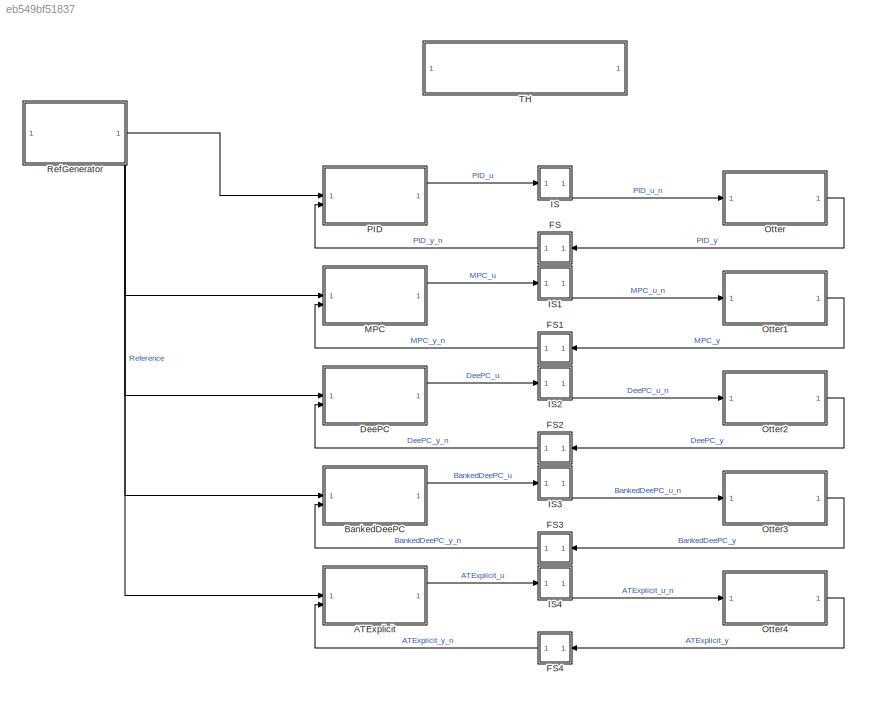
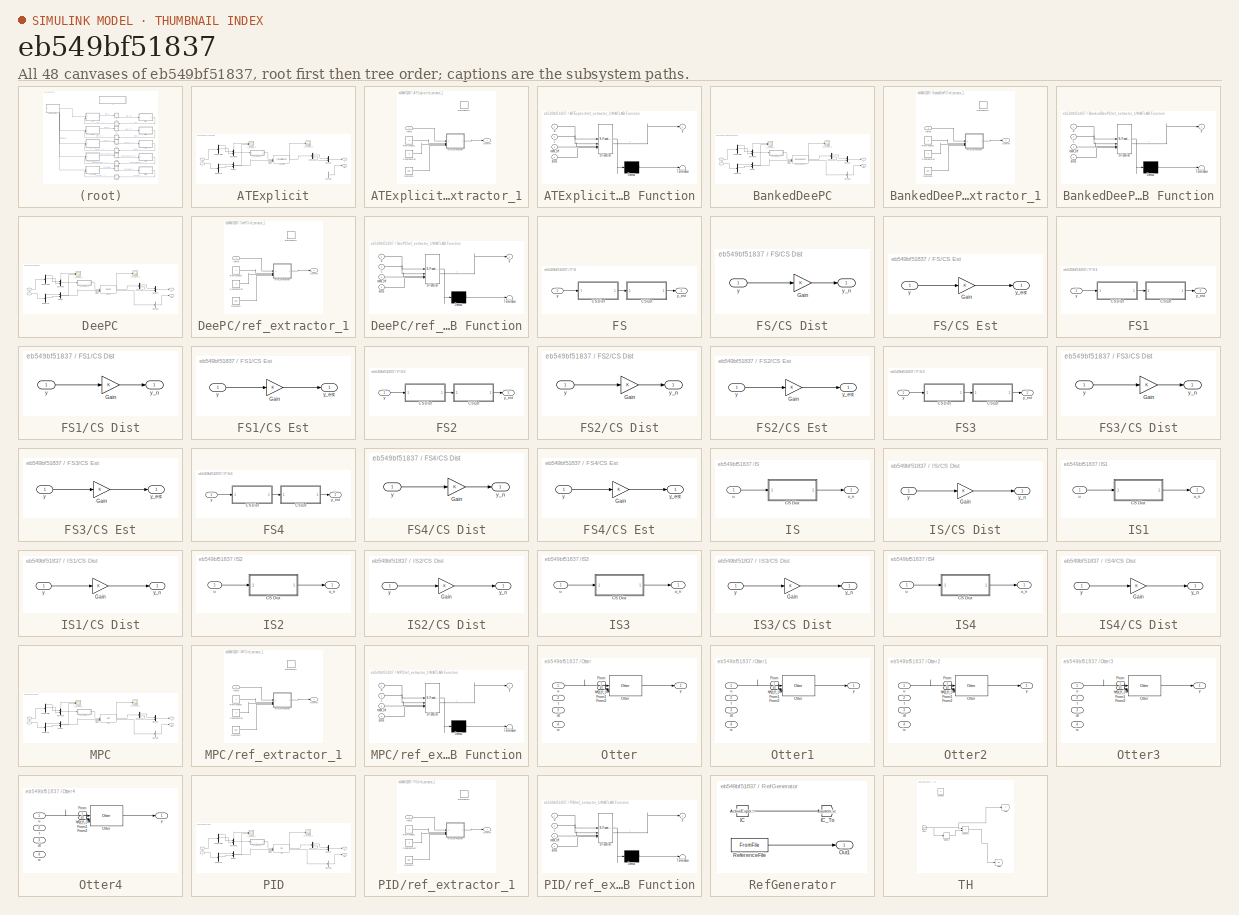
[diagram: thumbnail index - all 48 canvases of the model, root first then tree order]
MODEL slx_eb549bf51837
KIND model
CONFIG AbsTol = auto
CONFIG EnableMultiTasking = off
CONFIG FixedStep = 0.05
CONFIG InitFcn = on_model_start
CONFIG MaxStep = auto
CONFIG MinStep = auto
CONFIG PostLoadFcn = on_model_load
CONFIG RelTol = 1e-3
CONFIG SampleTimeConstraint = Unconstrained
CONFIG SolverName = FixedStepAuto
CONFIG StartTime = 0.0
CONFIG StopFcn = on_simulation_done
CONFIG StopTime = 10.0
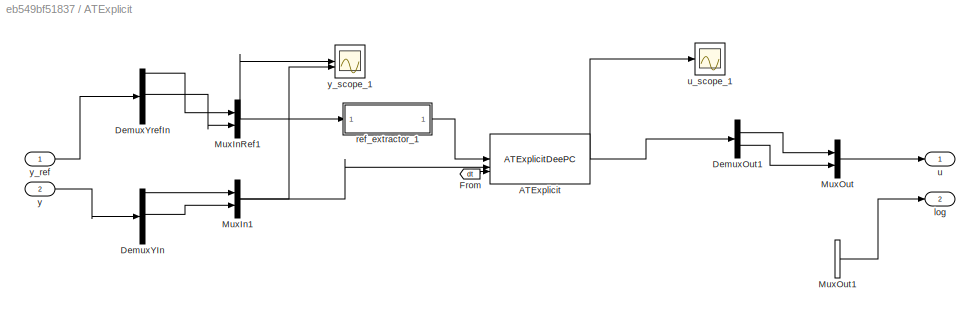
BLOCK [SubSystem] ATExplicit
  Tag = __cs_template;__cs_comptype:ctl
BLOCK [Reference] ATExplicit/ATExplicit  REF=data_driven_lib_ctl/ATExplicitDeePC
  SourceBlock = data_driven_lib_ctl/ATExplicitDeePC
  Tag = __cs_comptype:ctl;__cs_compimpl:mat;
BLOCK [Demux] ATExplicit/DemuxOut1
  Outputs = 2
BLOCK [Demux] ATExplicit/DemuxYIn
  Outputs = 12
BLOCK [Demux] ATExplicit/DemuxYrefIn
  Outputs = 12
BLOCK [From] ATExplicit/From
  GotoTag = dt
  TagVisibility = global
BLOCK [Mux] ATExplicit/MuxIn1
  DisplayOption = bar
  Inputs = 2
BLOCK [Mux] ATExplicit/MuxInRef1
  DisplayOption = bar
  Inputs = 2
BLOCK [Mux] ATExplicit/MuxOut
  DisplayOption = bar
  Inputs = 2
BLOCK [BusCreator] ATExplicit/MuxOut1
  DisplayOption = bar
  InheritFromInputs = on
  Inputs = 1
BLOCK [Outport] ATExplicit/log
  Port = 2
BLOCK [SubSystem] ATExplicit/ref_extractor_1
BLOCK [Constant] ATExplicit/ref_extractor_1/ConstantRef
  Value = 0
BLOCK [Inport] ATExplicit/ref_extractor_1/InRef
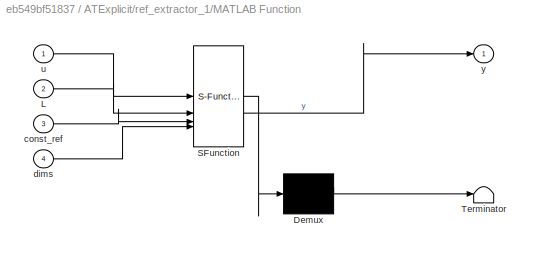
BLOCK [SubSystem] ATExplicit/ref_extractor_1/MATLAB Function
  ErrorFcn = Stateflow.Translate.translate
  PermitHierarchicalResolution = ExplicitOnly
  SFBlockType = MATLAB Function
  TreatAsAtomicUnit = on
BLOCK [Demux] ATExplicit/ref_extractor_1/MATLAB Function/ Demux 
  Outputs = 1
BLOCK [S-Function] ATExplicit/ref_extractor_1/MATLAB Function/ SFunction 
  EnableBusSupport = off
  FunctionName = sf_sfun
  Parameters = GlobalReference
  PortCounts = [4 2]
  SFcnIsStateOwnerBlock = off
  SFunctionDeploymentMode = off
  Tag = Stateflow S-Function 4
BLOCK [Terminator] ATExplicit/ref_extractor_1/MATLAB Function/ Terminator 
BLOCK [Inport] ATExplicit/ref_extractor_1/MATLAB Function/L
  Port = 2
BLOCK [Inport] ATExplicit/ref_extractor_1/MATLAB Function/const_ref
  Port = 3
BLOCK [Inport] ATExplicit/ref_extractor_1/MATLAB Function/dims
  Port = 4
BLOCK [Inport] ATExplicit/ref_extractor_1/MATLAB Function/u
BLOCK [Outport] ATExplicit/ref_extractor_1/MATLAB Function/y
BLOCK [Outport] ATExplicit/ref_extractor_1/OutRef
BLOCK [Constant] ATExplicit/ref_extractor_1/RefDims
  Value = [1 2]
BLOCK [Constant] ATExplicit/ref_extractor_1/RefHorizonL
BLOCK [DataStoreMemory] ATExplicit/ref_extractor_1/RefMemory
  DataStoreName = ref
  OutDataTypeStr = double
  ShowAdditionalParam = off
  SignalType = real
  WriteAfterWriteMsg = warning
BLOCK [Outport] ATExplicit/u
  PortDimensions = 2
BLOCK [Scope] ATExplicit/u_scope_1
  Floating = off
  NumInputPorts = 1
BLOCK [Inport] ATExplicit/y
  Port = 2
  PortDimensions = 12
BLOCK [Inport] ATExplicit/y_ref
  PortDimensions = 12
BLOCK [Scope] ATExplicit/y_scope_1
  Floating = off
  NumInputPorts = 2
BLOCK [SubSystem] BankedDeePC
  Tag = __cs_template;__cs_comptype:ctl
BLOCK [Reference] BankedDeePC/BankedDeePC  REF=data_driven_lib_ctl/BankedDeePC
  SourceBlock = data_driven_lib_ctl/BankedDeePC
  Tag = __cs_comptype:ctl;__cs_compimpl:mat;
BLOCK [Demux] BankedDeePC/DemuxOut1
  Outputs = 2
BLOCK [Demux] BankedDeePC/DemuxYIn
  Outputs = 12
BLOCK [Demux] BankedDeePC/DemuxYrefIn
  Outputs = 12
BLOCK [From] BankedDeePC/From
  GotoTag = dt
  TagVisibility = global
BLOCK [Mux] BankedDeePC/MuxIn1
  DisplayOption = bar
  Inputs = 2
BLOCK [Mux] BankedDeePC/MuxInRef1
  DisplayOption = bar
  Inputs = 2
BLOCK [Mux] BankedDeePC/MuxOut
  DisplayOption = bar
  Inputs = 2
BLOCK [BusCreator] BankedDeePC/MuxOut1
  DisplayOption = bar
  InheritFromInputs = on
  Inputs = 1
BLOCK [Outport] BankedDeePC/log
  Port = 2
BLOCK [SubSystem] BankedDeePC/ref_extractor_1
BLOCK [Constant] BankedDeePC/ref_extractor_1/ConstantRef
  Value = 0
BLOCK [Inport] BankedDeePC/ref_extractor_1/InRef
BLOCK [SubSystem] BankedDeePC/ref_extractor_1/MATLAB Function
  ErrorFcn = Stateflow.Translate.translate
  PermitHierarchicalResolution = ExplicitOnly
  SFBlockType = MATLAB Function
  TreatAsAtomicUnit = on
BLOCK [Demux] BankedDeePC/ref_extractor_1/MATLAB Function/ Demux 
  Outputs = 1
BLOCK [S-Function] BankedDeePC/ref_extractor_1/MATLAB Function/ SFunction 
  EnableBusSupport = off
  FunctionName = sf_sfun
  Parameters = GlobalReference
  PortCounts = [4 2]
  SFcnIsStateOwnerBlock = off
  SFunctionDeploymentMode = off
  Tag = Stateflow S-Function 3
BLOCK [Terminator] BankedDeePC/ref_extractor_1/MATLAB Function/ Terminator 
BLOCK [Inport] BankedDeePC/ref_extractor_1/MATLAB Function/L
  Port = 2
BLOCK [Inport] BankedDeePC/ref_extractor_1/MATLAB Function/const_ref
  Port = 3
BLOCK [Inport] BankedDeePC/ref_extractor_1/MATLAB Function/dims
  Port = 4
BLOCK [Inport] BankedDeePC/ref_extractor_1/MATLAB Function/u
BLOCK [Outport] BankedDeePC/ref_extractor_1/MATLAB Function/y
BLOCK [Outport] BankedDeePC/ref_extractor_1/OutRef
BLOCK [Constant] BankedDeePC/ref_extractor_1/RefDims
  Value = [1 2]
BLOCK [Constant] BankedDeePC/ref_extractor_1/RefHorizonL
BLOCK [DataStoreMemory] BankedDeePC/ref_extractor_1/RefMemory
  DataStoreName = ref
  OutDataTypeStr = double
  ShowAdditionalParam = off
  SignalType = real
  WriteAfterWriteMsg = warning
BLOCK [Outport] BankedDeePC/u
  PortDimensions = 2
BLOCK [Scope] BankedDeePC/u_scope_1
  Floating = off
  NumInputPorts = 1
BLOCK [Inport] BankedDeePC/y
  Port = 2
  PortDimensions = 12
BLOCK [Inport] BankedDeePC/y_ref
  PortDimensions = 12
BLOCK [Scope] BankedDeePC/y_scope_1
  Floating = off
  NumInputPorts = 2
BLOCK [SubSystem] DeePC
  Tag = __cs_template;__cs_comptype:ctl
BLOCK [Reference] DeePC/DeePC  REF=data_driven_lib_ctl/DeePC
  SourceBlock = data_driven_lib_ctl/DeePC
  Tag = __cs_comptype:ctl;__cs_compimpl:mat;
BLOCK [Demux] DeePC/DemuxOut1
  Outputs = 2
BLOCK [Demux] DeePC/DemuxYIn
  Outputs = 12
BLOCK [Demux] DeePC/DemuxYrefIn
  Outputs = 12
BLOCK [From] DeePC/From
  GotoTag = dt
  TagVisibility = global
BLOCK [Mux] DeePC/MuxIn1
  DisplayOption = bar
  Inputs = 2
BLOCK [Mux] DeePC/MuxInRef1
  DisplayOption = bar
  Inputs = 2
BLOCK [Mux] DeePC/MuxOut
  DisplayOption = bar
  Inputs = 2
BLOCK [BusCreator] DeePC/MuxOut1
  DisplayOption = bar
  InheritFromInputs = on
  Inputs = 1
BLOCK [Outport] DeePC/log
  Port = 2
BLOCK [SubSystem] DeePC/ref_extractor_1
BLOCK [Constant] DeePC/ref_extractor_1/ConstantRef
  Value = 0
BLOCK [Inport] DeePC/ref_extractor_1/InRef
BLOCK [SubSystem] DeePC/ref_extractor_1/MATLAB Function
  ErrorFcn = Stateflow.Translate.translate
  PermitHierarchicalResolution = ExplicitOnly
  SFBlockType = MATLAB Function
  TreatAsAtomicUnit = on
BLOCK [Demux] DeePC/ref_extractor_1/MATLAB Function/ Demux 
  Outputs = 1
BLOCK [S-Function] DeePC/ref_extractor_1/MATLAB Function/ SFunction 
  EnableBusSupport = off
  FunctionName = sf_sfun
  Parameters = GlobalReference
  PortCounts = [4 2]
  SFcnIsStateOwnerBlock = off
  SFunctionDeploymentMode = off
  Tag = Stateflow S-Function 2
BLOCK [Terminator] DeePC/ref_extractor_1/MATLAB Function/ Terminator 
BLOCK [Inport] DeePC/ref_extractor_1/MATLAB Function/L
  Port = 2
BLOCK [Inport] DeePC/ref_extractor_1/MATLAB Function/const_ref
  Port = 3
BLOCK [Inport] DeePC/ref_extractor_1/MATLAB Function/dims
  Port = 4
BLOCK [Inport] DeePC/ref_extractor_1/MATLAB Function/u
BLOCK [Outport] DeePC/ref_extractor_1/MATLAB Function/y
BLOCK [Outport] DeePC/ref_extractor_1/OutRef
BLOCK [Constant] DeePC/ref_extractor_1/RefDims
  Value = [1 2]
BLOCK [Constant] DeePC/ref_extractor_1/RefHorizonL
BLOCK [DataStoreMemory] DeePC/ref_extractor_1/RefMemory
  DataStoreName = ref
  OutDataTypeStr = double
  ShowAdditionalParam = off
  SignalType = real
  WriteAfterWriteMsg = warning
BLOCK [Outport] DeePC/u
  PortDimensions = 2
BLOCK [Scope] DeePC/u_scope_1
  Floating = off
  NumInputPorts = 1
BLOCK [Inport] DeePC/y
  Port = 2
  PortDimensions = 12
BLOCK [Inport] DeePC/y_ref
  PortDimensions = 12
BLOCK [Scope] DeePC/y_scope_1
  Floating = off
  NumInputPorts = 2
BLOCK [SubSystem] FS
  NameLocation = top
BLOCK [SubSystem] FS/CS Dist
BLOCK [Gain] FS/CS Dist/Gain
BLOCK [Inport] FS/CS Dist/y
BLOCK [Outport] FS/CS Dist/y_n
BLOCK [SubSystem] FS/CS Est
BLOCK [Gain] FS/CS Est/Gain
BLOCK [Inport] FS/CS Est/y
BLOCK [Outport] FS/CS Est/y_est
BLOCK [Inport] FS/y
BLOCK [Outport] FS/y_est
BLOCK [SubSystem] FS1
  NameLocation = top
BLOCK [SubSystem] FS1/CS Dist
BLOCK [Gain] FS1/CS Dist/Gain
BLOCK [Inport] FS1/CS Dist/y
BLOCK [Outport] FS1/CS Dist/y_n
BLOCK [SubSystem] FS1/CS Est
BLOCK [Gain] FS1/CS Est/Gain
BLOCK [Inport] FS1/CS Est/y
BLOCK [Outport] FS1/CS Est/y_est
BLOCK [Inport] FS1/y
BLOCK [Outport] FS1/y_est
BLOCK [SubSystem] FS2
  NameLocation = top
BLOCK [SubSystem] FS2/CS Dist
BLOCK [Gain] FS2/CS Dist/Gain
BLOCK [Inport] FS2/CS Dist/y
BLOCK [Outport] FS2/CS Dist/y_n
BLOCK [SubSystem] FS2/CS Est
BLOCK [Gain] FS2/CS Est/Gain
BLOCK [Inport] FS2/CS Est/y
BLOCK [Outport] FS2/CS Est/y_est
BLOCK [Inport] FS2/y
BLOCK [Outport] FS2/y_est
BLOCK [SubSystem] FS3
  NameLocation = top
BLOCK [SubSystem] FS3/CS Dist
BLOCK [Gain] FS3/CS Dist/Gain
BLOCK [Inport] FS3/CS Dist/y
BLOCK [Outport] FS3/CS Dist/y_n
BLOCK [SubSystem] FS3/CS Est
BLOCK [Gain] FS3/CS Est/Gain
BLOCK [Inport] FS3/CS Est/y
BLOCK [Outport] FS3/CS Est/y_est
BLOCK [Inport] FS3/y
BLOCK [Outport] FS3/y_est
BLOCK [SubSystem] FS4
  NameLocation = top
BLOCK [SubSystem] FS4/CS Dist
BLOCK [Gain] FS4/CS Dist/Gain
BLOCK [Inport] FS4/CS Dist/y
BLOCK [Outport] FS4/CS Dist/y_n
BLOCK [SubSystem] FS4/CS Est
BLOCK [Gain] FS4/CS Est/Gain
BLOCK [Inport] FS4/CS Est/y
BLOCK [Outport] FS4/CS Est/y_est
BLOCK [Inport] FS4/y
BLOCK [Outport] FS4/y_est
BLOCK [SubSystem] IS
BLOCK [SubSystem] IS/CS Dist
BLOCK [Gain] IS/CS Dist/Gain
BLOCK [Inport] IS/CS Dist/y
BLOCK [Outport] IS/CS Dist/y_n
BLOCK [Inport] IS/u
BLOCK [Outport] IS/u_n
BLOCK [SubSystem] IS1
BLOCK [SubSystem] IS1/CS Dist
BLOCK [Gain] IS1/CS Dist/Gain
BLOCK [Inport] IS1/CS Dist/y
BLOCK [Outport] IS1/CS Dist/y_n
BLOCK [Inport] IS1/u
BLOCK [Outport] IS1/u_n
BLOCK [SubSystem] IS2
BLOCK [SubSystem] IS2/CS Dist
BLOCK [Gain] IS2/CS Dist/Gain
BLOCK [Inport] IS2/CS Dist/y
BLOCK [Outport] IS2/CS Dist/y_n
BLOCK [Inport] IS2/u
BLOCK [Outport] IS2/u_n
BLOCK [SubSystem] IS3
BLOCK [SubSystem] IS3/CS Dist
BLOCK [Gain] IS3/CS Dist/Gain
BLOCK [Inport] IS3/CS Dist/y
BLOCK [Outport] IS3/CS Dist/y_n
BLOCK [Inport] IS3/u
BLOCK [Outport] IS3/u_n
BLOCK [SubSystem] IS4
BLOCK [SubSystem] IS4/CS Dist
BLOCK [Gain] IS4/CS Dist/Gain
BLOCK [Inport] IS4/CS Dist/y
BLOCK [Outport] IS4/CS Dist/y_n
BLOCK [Inport] IS4/u
BLOCK [Outport] IS4/u_n
BLOCK [SubSystem] MPC
  Tag = __cs_template;__cs_comptype:ctl
BLOCK [Demux] MPC/DemuxOut1
  Outputs = 2
BLOCK [Demux] MPC/DemuxYIn
  Outputs = 12
BLOCK [Demux] MPC/DemuxYrefIn
  Outputs = 12
BLOCK [From] MPC/From
  GotoTag = dt
  TagVisibility = global
BLOCK [Reference] MPC/MPC  REF=csbenchlab_ctl/MPC
  SourceBlock = csbenchlab_ctl/MPC
  Tag = __cs_slx_ctl;__cs_comptype:ctl;__cs_compimpl:slx;
BLOCK [Mux] MPC/MuxIn1
  DisplayOption = bar
  Inputs = 2
BLOCK [Mux] MPC/MuxInRef1
  DisplayOption = bar
  Inputs = 2
BLOCK [Mux] MPC/MuxOut
  DisplayOption = bar
  Inputs = 2
BLOCK [BusCreator] MPC/MuxOut1
  DisplayOption = bar
  InheritFromInputs = on
  Inputs = 1
BLOCK [Outport] MPC/log
  Port = 2
BLOCK [SubSystem] MPC/ref_extractor_1
BLOCK [Constant] MPC/ref_extractor_1/ConstantRef
  Value = 0
BLOCK [Inport] MPC/ref_extractor_1/InRef
BLOCK [SubSystem] MPC/ref_extractor_1/MATLAB Function
  ErrorFcn = Stateflow.Translate.translate
  PermitHierarchicalResolution = ExplicitOnly
  SFBlockType = MATLAB Function
  TreatAsAtomicUnit = on
BLOCK [Demux] MPC/ref_extractor_1/MATLAB Function/ Demux 
  Outputs = 1
BLOCK [S-Function] MPC/ref_extractor_1/MATLAB Function/ SFunction 
  EnableBusSupport = off
  FunctionName = sf_sfun
  Parameters = GlobalReference
  PortCounts = [4 2]
  SFcnIsStateOwnerBlock = off
  SFunctionDeploymentMode = off
  Tag = Stateflow S-Function 1
BLOCK [Terminator] MPC/ref_extractor_1/MATLAB Function/ Terminator 
BLOCK [Inport] MPC/ref_extractor_1/MATLAB Function/L
  Port = 2
BLOCK [Inport] MPC/ref_extractor_1/MATLAB Function/const_ref
  Port = 3
BLOCK [Inport] MPC/ref_extractor_1/MATLAB Function/dims
  Port = 4
BLOCK [Inport] MPC/ref_extractor_1/MATLAB Function/u
BLOCK [Outport] MPC/ref_extractor_1/MATLAB Function/y
BLOCK [Outport] MPC/ref_extractor_1/OutRef
BLOCK [Constant] MPC/ref_extractor_1/RefDims
  Value = [1 2]
BLOCK [Constant] MPC/ref_extractor_1/RefHorizonL
BLOCK [DataStoreMemory] MPC/ref_extractor_1/RefMemory
  DataStoreName = ref
  OutDataTypeStr = double
  ShowAdditionalParam = off
  SignalType = real
  WriteAfterWriteMsg = warning
BLOCK [Outport] MPC/u
  PortDimensions = 2
BLOCK [Scope] MPC/u_scope_1
  Floating = off
  NumInputPorts = 1
BLOCK [Inport] MPC/y
  Port = 2
  PortDimensions = 12
BLOCK [Inport] MPC/y_ref
  PortDimensions = 12
BLOCK [Scope] MPC/y_scope_1
  Floating = off
  NumInputPorts = 2
BLOCK [SubSystem] Otter
  Tag = __cs_template;__cs_comptype:sys
BLOCK [From] Otter/From
  GotoTag = t
  TagVisibility = global
BLOCK [From] Otter/From1
  GotoTag = dt
  TagVisibility = global
BLOCK [From] Otter/From2
  GotoTag = system_ic
  TagVisibility = global
BLOCK [Reference] Otter/Otter  REF=marine_lib_sys/Otter
  SourceBlock = marine_lib_sys/Otter
  Tag = system;__cs_slx_sys;__cs_comptype:sys;__cs_compimpl:slx;
BLOCK [Inport] Otter/dt
  Port = 3
BLOCK [Inport] Otter/ic
  Port = 4
BLOCK [Inport] Otter/t
  Port = 2
BLOCK [Inport] Otter/u
BLOCK [Outport] Otter/y
BLOCK [SubSystem] Otter1
  Tag = __cs_template;__cs_comptype:sys
BLOCK [From] Otter1/From
  GotoTag = t
  TagVisibility = global
BLOCK [From] Otter1/From1
  GotoTag = dt
  TagVisibility = global
BLOCK [From] Otter1/From2
  GotoTag = system_ic
  TagVisibility = global
BLOCK [Reference] Otter1/Otter  REF=marine_lib_sys/Otter
  SourceBlock = marine_lib_sys/Otter
  Tag = system;__cs_slx_sys;__cs_comptype:sys;__cs_compimpl:slx;
BLOCK [Inport] Otter1/dt
  Port = 3
BLOCK [Inport] Otter1/ic
  Port = 4
BLOCK [Inport] Otter1/t
  Port = 2
BLOCK [Inport] Otter1/u
BLOCK [Outport] Otter1/y
BLOCK [SubSystem] Otter2
  Tag = __cs_template;__cs_comptype:sys
BLOCK [From] Otter2/From
  GotoTag = t
  TagVisibility = global
BLOCK [From] Otter2/From1
  GotoTag = dt
  TagVisibility = global
BLOCK [From] Otter2/From2
  GotoTag = system_ic
  TagVisibility = global
BLOCK [Reference] Otter2/Otter  REF=marine_lib_sys/Otter
  SourceBlock = marine_lib_sys/Otter
  Tag = system;__cs_slx_sys;__cs_comptype:sys;__cs_compimpl:slx;
BLOCK [Inport] Otter2/dt
  Port = 3
BLOCK [Inport] Otter2/ic
  Port = 4
BLOCK [Inport] Otter2/t
  Port = 2
BLOCK [Inport] Otter2/u
BLOCK [Outport] Otter2/y
BLOCK [SubSystem] Otter3
  Tag = __cs_template;__cs_comptype:sys
BLOCK [From] Otter3/From
  GotoTag = t
  TagVisibility = global
BLOCK [From] Otter3/From1
  GotoTag = dt
  TagVisibility = global
BLOCK [From] Otter3/From2
  GotoTag = system_ic
  TagVisibility = global
BLOCK [Reference] Otter3/Otter  REF=marine_lib_sys/Otter
  SourceBlock = marine_lib_sys/Otter
  Tag = system;__cs_slx_sys;__cs_comptype:sys;__cs_compimpl:slx;
BLOCK [Inport] Otter3/dt
  Port = 3
BLOCK [Inport] Otter3/ic
  Port = 4
BLOCK [Inport] Otter3/t
  Port = 2
BLOCK [Inport] Otter3/u
BLOCK [Outport] Otter3/y
BLOCK [SubSystem] Otter4
  Tag = __cs_template;__cs_comptype:sys
BLOCK [From] Otter4/From
  GotoTag = t
  TagVisibility = global
BLOCK [From] Otter4/From1
  GotoTag = dt
  TagVisibility = global
BLOCK [From] Otter4/From2
  GotoTag = system_ic
  TagVisibility = global
BLOCK [Reference] Otter4/Otter  REF=marine_lib_sys/Otter
  SourceBlock = marine_lib_sys/Otter
  Tag = system;__cs_slx_sys;__cs_comptype:sys;__cs_compimpl:slx;
BLOCK [Inport] Otter4/dt
  Port = 3
BLOCK [Inport] Otter4/ic
  Port = 4
BLOCK [Inport] Otter4/t
  Port = 2
BLOCK [Inport] Otter4/u
BLOCK [Outport] Otter4/y
BLOCK [SubSystem] PID
  Tag = __cs_template;__cs_comptype:ctl
BLOCK [Demux] PID/DemuxOut1
  Outputs = 2
BLOCK [Demux] PID/DemuxYIn
  Outputs = 12
BLOCK [Demux] PID/DemuxYrefIn
  Outputs = 12
BLOCK [From] PID/From
  GotoTag = dt
  TagVisibility = global
BLOCK [Mux] PID/MuxIn1
  DisplayOption = bar
  Inputs = 2
BLOCK [Mux] PID/MuxInRef1
  DisplayOption = bar
  Inputs = 2
BLOCK [Mux] PID/MuxOut
  DisplayOption = bar
  Inputs = 2
BLOCK [BusCreator] PID/MuxOut1
  DisplayOption = bar
  InheritFromInputs = on
  Inputs = 1
BLOCK [Reference] PID/PID  REF=csbenchlab_ctl/PID
  SourceBlock = csbenchlab_ctl/PID
  Tag = __cs_slx_ctl;__cs_comptype:ctl;__cs_compimpl:slx;
BLOCK [Outport] PID/log
  Port = 2
BLOCK [SubSystem] PID/ref_extractor_1
BLOCK [Constant] PID/ref_extractor_1/ConstantRef
  Value = 0
BLOCK [Inport] PID/ref_extractor_1/InRef
BLOCK [SubSystem] PID/ref_extractor_1/MATLAB Function
  ErrorFcn = Stateflow.Translate.translate
  PermitHierarchicalResolution = ExplicitOnly
  SFBlockType = MATLAB Function
  TreatAsAtomicUnit = on
BLOCK [Demux] PID/ref_extractor_1/MATLAB Function/ Demux 
  Outputs = 1
BLOCK [S-Function] PID/ref_extractor_1/MATLAB Function/ SFunction 
  EnableBusSupport = off
  FunctionName = sf_sfun
  Parameters = GlobalReference
  PortCounts = [4 2]
  SFcnIsStateOwnerBlock = off
  SFunctionDeploymentMode = off
  Tag = Stateflow S-Function 7
BLOCK [Terminator] PID/ref_extractor_1/MATLAB Function/ Terminator 
BLOCK [Inport] PID/ref_extractor_1/MATLAB Function/L
  Port = 2
BLOCK [Inport] PID/ref_extractor_1/MATLAB Function/const_ref
  Port = 3
BLOCK [Inport] PID/ref_extractor_1/MATLAB Function/dims
  Port = 4
BLOCK [Inport] PID/ref_extractor_1/MATLAB Function/u
BLOCK [Outport] PID/ref_extractor_1/MATLAB Function/y
BLOCK [Outport] PID/ref_extractor_1/OutRef
BLOCK [Constant] PID/ref_extractor_1/RefDims
  Value = [1 2]
BLOCK [Constant] PID/ref_extractor_1/RefHorizonL
BLOCK [DataStoreMemory] PID/ref_extractor_1/RefMemory
  DataStoreName = ref
  OutDataTypeStr = double
  ShowAdditionalParam = off
  SignalType = real
  WriteAfterWriteMsg = warning
BLOCK [Outport] PID/u
  PortDimensions = 2
BLOCK [Scope] PID/u_scope_1
  Floating = off
  NumInputPorts = 1
BLOCK [Inport] PID/y
  Port = 2
  PortDimensions = 12
BLOCK [Inport] PID/y_ref
  PortDimensions = 12
BLOCK [Scope] PID/y_scope_1
  Floating = off
  NumInputPorts = 2
BLOCK [SubSystem] RefGenerator
  OpenFcn = on_reference_generator_open();
BLOCK [Constant] RefGenerator/IC
  Value = ActiveExperiment.SystemIc
BLOCK [Goto] RefGenerator/IC_To
  GotoTag = system_ic
  TagVisibility = global
BLOCK [Outport] RefGenerator/Out1
BLOCK [FromFile] RefGenerator/ReferenceFile
  SampleTime = 0
BLOCK [SubSystem] TH
BLOCK [Clock] TH/Clock
BLOCK [Constant] TH/Constant
BLOCK [Goto] TH/Goto
  GotoTag = t
  TagVisibility = global
BLOCK [Goto] TH/Goto1
  GotoTag = dt
  TagVisibility = global
BLOCK [Memory] TH/Memory
BLOCK [Sum] TH/Subtract
  IconShape = rectangular
  Inputs = +-
NET ATExplicit/ATExplicit:1 -> ATExplicit/DemuxOut1:1, ATExplicit/u_scope_1:1
LINE ATExplicit/DemuxOut1:1 -> ATExplicit/MuxOut:1
LINE ATExplicit/DemuxOut1:2 -> ATExplicit/MuxOut:2
LINE ATExplicit/DemuxYIn:1 -> ATExplicit/MuxIn1:1
LINE ATExplicit/DemuxYIn:6 -> ATExplicit/MuxIn1:2
LINE ATExplicit/DemuxYrefIn:1 -> ATExplicit/MuxInRef1:1
LINE ATExplicit/DemuxYrefIn:6 -> ATExplicit/MuxInRef1:2
LINE ATExplicit/From:1 -> ATExplicit/ATExplicit:3
NET ATExplicit/MuxIn1:1 -> ATExplicit/ATExplicit:2, ATExplicit/y_scope_1:2
NET ATExplicit/MuxInRef1:1 -> ATExplicit/ref_extractor_1:1, ATExplicit/y_scope_1:1
LINE ATExplicit/MuxOut1:1 -> ATExplicit/log:1
LINE ATExplicit/MuxOut:1 -> ATExplicit/u:1
LINE ATExplicit/ref_extractor_1/ConstantRef:1 -> ATExplicit/ref_extractor_1/MATLAB Function:3
LINE ATExplicit/ref_extractor_1/InRef:1 -> ATExplicit/ref_extractor_1/MATLAB Function:1
LINE ATExplicit/ref_extractor_1/MATLAB Function:1 -> ATExplicit/ref_extractor_1/OutRef:1
LINE ATExplicit/ref_extractor_1/RefDims:1 -> ATExplicit/ref_extractor_1/MATLAB Function:4
LINE ATExplicit/ref_extractor_1/RefHorizonL:1 -> ATExplicit/ref_extractor_1/MATLAB Function:2
LINE ATExplicit/ref_extractor_1:1 -> ATExplicit/ATExplicit:1
LINE ATExplicit/y:1 -> ATExplicit/DemuxYIn:1
LINE ATExplicit/y_ref:1 -> ATExplicit/DemuxYrefIn:1
LINE ATExplicit:1 -> IS4:1
NET BankedDeePC/BankedDeePC:1 -> BankedDeePC/DemuxOut1:1, BankedDeePC/u_scope_1:1
LINE BankedDeePC/BankedDeePC:2 -> BankedDeePC/MuxOut1:1
LINE BankedDeePC/DemuxOut1:1 -> BankedDeePC/MuxOut:1
LINE BankedDeePC/DemuxOut1:2 -> BankedDeePC/MuxOut:2
LINE BankedDeePC/DemuxYIn:1 -> BankedDeePC/MuxIn1:1
LINE BankedDeePC/DemuxYIn:6 -> BankedDeePC/MuxIn1:2
LINE BankedDeePC/DemuxYrefIn:1 -> BankedDeePC/MuxInRef1:1
LINE BankedDeePC/DemuxYrefIn:6 -> BankedDeePC/MuxInRef1:2
LINE BankedDeePC/From:1 -> BankedDeePC/BankedDeePC:3
NET BankedDeePC/MuxIn1:1 -> BankedDeePC/BankedDeePC:2, BankedDeePC/y_scope_1:2
NET BankedDeePC/MuxInRef1:1 -> BankedDeePC/ref_extractor_1:1, BankedDeePC/y_scope_1:1
LINE BankedDeePC/MuxOut1:1 -> BankedDeePC/log:1
LINE BankedDeePC/MuxOut:1 -> BankedDeePC/u:1
LINE BankedDeePC/ref_extractor_1/ConstantRef:1 -> BankedDeePC/ref_extractor_1/MATLAB Function:3
LINE BankedDeePC/ref_extractor_1/InRef:1 -> BankedDeePC/ref_extractor_1/MATLAB Function:1
LINE BankedDeePC/ref_extractor_1/MATLAB Function:1 -> BankedDeePC/ref_extractor_1/OutRef:1
LINE BankedDeePC/ref_extractor_1/RefDims:1 -> BankedDeePC/ref_extractor_1/MATLAB Function:4
LINE BankedDeePC/ref_extractor_1/RefHorizonL:1 -> BankedDeePC/ref_extractor_1/MATLAB Function:2
LINE BankedDeePC/ref_extractor_1:1 -> BankedDeePC/BankedDeePC:1
LINE BankedDeePC/y:1 -> BankedDeePC/DemuxYIn:1
LINE BankedDeePC/y_ref:1 -> BankedDeePC/DemuxYrefIn:1
LINE BankedDeePC:1 -> IS3:1
NET DeePC/DeePC:1 -> DeePC/DemuxOut1:1, DeePC/u_scope_1:1
LINE DeePC/DeePC:2 -> DeePC/MuxOut1:1
LINE DeePC/DemuxOut1:1 -> DeePC/MuxOut:1
LINE DeePC/DemuxOut1:2 -> DeePC/MuxOut:2
LINE DeePC/DemuxYIn:1 -> DeePC/MuxIn1:1
LINE DeePC/DemuxYIn:6 -> DeePC/MuxIn1:2
LINE DeePC/DemuxYrefIn:1 -> DeePC/MuxInRef1:1
LINE DeePC/DemuxYrefIn:6 -> DeePC/MuxInRef1:2
LINE DeePC/From:1 -> DeePC/DeePC:3
NET DeePC/MuxIn1:1 -> DeePC/DeePC:2, DeePC/y_scope_1:2
NET DeePC/MuxInRef1:1 -> DeePC/ref_extractor_1:1, DeePC/y_scope_1:1
LINE DeePC/MuxOut1:1 -> DeePC/log:1
LINE DeePC/MuxOut:1 -> DeePC/u:1
LINE DeePC/ref_extractor_1/ConstantRef:1 -> DeePC/ref_extractor_1/MATLAB Function:3
LINE DeePC/ref_extractor_1/InRef:1 -> DeePC/ref_extractor_1/MATLAB Function:1
LINE DeePC/ref_extractor_1/MATLAB Function:1 -> DeePC/ref_extractor_1/OutRef:1
LINE DeePC/ref_extractor_1/RefDims:1 -> DeePC/ref_extractor_1/MATLAB Function:4
LINE DeePC/ref_extractor_1/RefHorizonL:1 -> DeePC/ref_extractor_1/MATLAB Function:2
LINE DeePC/ref_extractor_1:1 -> DeePC/DeePC:1
LINE DeePC/y:1 -> DeePC/DemuxYIn:1
LINE DeePC/y_ref:1 -> DeePC/DemuxYrefIn:1
LINE DeePC:1 -> IS2:1
LINE FS/CS Dist/Gain:1 -> FS/CS Dist/y_n:1
LINE FS/CS Dist/y:1 -> FS/CS Dist/Gain:1
LINE FS/CS Dist:1 -> FS/CS Est:1
LINE FS/CS Est/Gain:1 -> FS/CS Est/y_est:1
LINE FS/CS Est/y:1 -> FS/CS Est/Gain:1
LINE FS/CS Est:1 -> FS/y_est:1
LINE FS/y:1 -> FS/CS Dist:1
LINE FS1/CS Dist/Gain:1 -> FS1/CS Dist/y_n:1
LINE FS1/CS Dist/y:1 -> FS1/CS Dist/Gain:1
LINE FS1/CS Dist:1 -> FS1/CS Est:1
LINE FS1/CS Est/Gain:1 -> FS1/CS Est/y_est:1
LINE FS1/CS Est/y:1 -> FS1/CS Est/Gain:1
LINE FS1/CS Est:1 -> FS1/y_est:1
LINE FS1/y:1 -> FS1/CS Dist:1
LINE FS1:1 -> MPC:2
LINE FS2/CS Dist/Gain:1 -> FS2/CS Dist/y_n:1
LINE FS2/CS Dist/y:1 -> FS2/CS Dist/Gain:1
LINE FS2/CS Dist:1 -> FS2/CS Est:1
LINE FS2/CS Est/Gain:1 -> FS2/CS Est/y_est:1
LINE FS2/CS Est/y:1 -> FS2/CS Est/Gain:1
LINE FS2/CS Est:1 -> FS2/y_est:1
LINE FS2/y:1 -> FS2/CS Dist:1
LINE FS2:1 -> DeePC:2
LINE FS3/CS Dist/Gain:1 -> FS3/CS Dist/y_n:1
LINE FS3/CS Dist/y:1 -> FS3/CS Dist/Gain:1
LINE FS3/CS Dist:1 -> FS3/CS Est:1
LINE FS3/CS Est/Gain:1 -> FS3/CS Est/y_est:1
LINE FS3/CS Est/y:1 -> FS3/CS Est/Gain:1
LINE FS3/CS Est:1 -> FS3/y_est:1
LINE FS3/y:1 -> FS3/CS Dist:1
LINE FS3:1 -> BankedDeePC:2
LINE FS4/CS Dist/Gain:1 -> FS4/CS Dist/y_n:1
LINE FS4/CS Dist/y:1 -> FS4/CS Dist/Gain:1
LINE FS4/CS Dist:1 -> FS4/CS Est:1
LINE FS4/CS Est/Gain:1 -> FS4/CS Est/y_est:1
LINE FS4/CS Est/y:1 -> FS4/CS Est/Gain:1
LINE FS4/CS Est:1 -> FS4/y_est:1
LINE FS4/y:1 -> FS4/CS Dist:1
LINE FS4:1 -> ATExplicit:2
LINE FS:1 -> PID:2
LINE IS/CS Dist/Gain:1 -> IS/CS Dist/y_n:1
LINE IS/CS Dist/y:1 -> IS/CS Dist/Gain:1
LINE IS/CS Dist:1 -> IS/u_n:1
LINE IS/u:1 -> IS/CS Dist:1
LINE IS1/CS Dist/Gain:1 -> IS1/CS Dist/y_n:1
LINE IS1/CS Dist/y:1 -> IS1/CS Dist/Gain:1
LINE IS1/CS Dist:1 -> IS1/u_n:1
LINE IS1/u:1 -> IS1/CS Dist:1
LINE IS1:1 -> Otter1:1
LINE IS2/CS Dist/Gain:1 -> IS2/CS Dist/y_n:1
LINE IS2/CS Dist/y:1 -> IS2/CS Dist/Gain:1
LINE IS2/CS Dist:1 -> IS2/u_n:1
LINE IS2/u:1 -> IS2/CS Dist:1
LINE IS2:1 -> Otter2:1
LINE IS3/CS Dist/Gain:1 -> IS3/CS Dist/y_n:1
LINE IS3/CS Dist/y:1 -> IS3/CS Dist/Gain:1
LINE IS3/CS Dist:1 -> IS3/u_n:1
LINE IS3/u:1 -> IS3/CS Dist:1
LINE IS3:1 -> Otter3:1
LINE IS4/CS Dist/Gain:1 -> IS4/CS Dist/y_n:1
LINE IS4/CS Dist/y:1 -> IS4/CS Dist/Gain:1
LINE IS4/CS Dist:1 -> IS4/u_n:1
LINE IS4/u:1 -> IS4/CS Dist:1
LINE IS4:1 -> Otter4:1
LINE IS:1 -> Otter:1
LINE MPC/DemuxOut1:1 -> MPC/MuxOut:1
LINE MPC/DemuxOut1:2 -> MPC/MuxOut:2
LINE MPC/DemuxYIn:1 -> MPC/MuxIn1:1
LINE MPC/DemuxYIn:6 -> MPC/MuxIn1:2
LINE MPC/DemuxYrefIn:1 -> MPC/MuxInRef1:1
LINE MPC/DemuxYrefIn:6 -> MPC/MuxInRef1:2
LINE MPC/From:1 -> MPC/MPC:3
NET MPC/MPC:1 -> MPC/DemuxOut1:1, MPC/u_scope_1:1
LINE MPC/MPC:2 -> MPC/MuxOut1:1
NET MPC/MuxIn1:1 -> MPC/MPC:2, MPC/y_scope_1:2
NET MPC/MuxInRef1:1 -> MPC/ref_extractor_1:1, MPC/y_scope_1:1
LINE MPC/MuxOut1:1 -> MPC/log:1
LINE MPC/MuxOut:1 -> MPC/u:1
LINE MPC/ref_extractor_1/ConstantRef:1 -> MPC/ref_extractor_1/MATLAB Function:3
LINE MPC/ref_extractor_1/InRef:1 -> MPC/ref_extractor_1/MATLAB Function:1
LINE MPC/ref_extractor_1/MATLAB Function:1 -> MPC/ref_extractor_1/OutRef:1
LINE MPC/ref_extractor_1/RefDims:1 -> MPC/ref_extractor_1/MATLAB Function:4
LINE MPC/ref_extractor_1/RefHorizonL:1 -> MPC/ref_extractor_1/MATLAB Function:2
LINE MPC/ref_extractor_1:1 -> MPC/MPC:1
LINE MPC/y:1 -> MPC/DemuxYIn:1
LINE MPC/y_ref:1 -> MPC/DemuxYrefIn:1
LINE MPC:1 -> IS1:1
LINE Otter/From1:1 -> Otter/Otter:3
LINE Otter/From2:1 -> Otter/Otter:4
LINE Otter/From:1 -> Otter/Otter:2
LINE Otter/Otter:1 -> Otter/y:1
LINE Otter/u:1 -> Otter/Otter:1
LINE Otter1/From1:1 -> Otter1/Otter:3
LINE Otter1/From2:1 -> Otter1/Otter:4
LINE Otter1/From:1 -> Otter1/Otter:2
LINE Otter1/Otter:1 -> Otter1/y:1
LINE Otter1/u:1 -> Otter1/Otter:1
LINE Otter1:1 -> FS1:1
LINE Otter2/From1:1 -> Otter2/Otter:3
LINE Otter2/From2:1 -> Otter2/Otter:4
LINE Otter2/From:1 -> Otter2/Otter:2
LINE Otter2/Otter:1 -> Otter2/y:1
LINE Otter2/u:1 -> Otter2/Otter:1
LINE Otter2:1 -> FS2:1
LINE Otter3/From1:1 -> Otter3/Otter:3
LINE Otter3/From2:1 -> Otter3/Otter:4
LINE Otter3/From:1 -> Otter3/Otter:2
LINE Otter3/Otter:1 -> Otter3/y:1
LINE Otter3/u:1 -> Otter3/Otter:1
LINE Otter3:1 -> FS3:1
LINE Otter4/From1:1 -> Otter4/Otter:3
LINE Otter4/From2:1 -> Otter4/Otter:4
LINE Otter4/From:1 -> Otter4/Otter:2
LINE Otter4/Otter:1 -> Otter4/y:1
LINE Otter4/u:1 -> Otter4/Otter:1
LINE Otter4:1 -> FS4:1
LINE Otter:1 -> FS:1
LINE PID/DemuxOut1:1 -> PID/MuxOut:1
LINE PID/DemuxOut1:2 -> PID/MuxOut:2
LINE PID/DemuxYIn:1 -> PID/MuxIn1:1
LINE PID/DemuxYIn:6 -> PID/MuxIn1:2
LINE PID/DemuxYrefIn:1 -> PID/MuxInRef1:1
LINE PID/DemuxYrefIn:6 -> PID/MuxInRef1:2
LINE PID/From:1 -> PID/PID:3
NET PID/MuxIn1:1 -> PID/PID:2, PID/y_scope_1:2
NET PID/MuxInRef1:1 -> PID/ref_extractor_1:1, PID/y_scope_1:1
LINE PID/MuxOut1:1 -> PID/log:1
LINE PID/MuxOut:1 -> PID/u:1
NET PID/PID:1 -> PID/DemuxOut1:1, PID/u_scope_1:1
LINE PID/PID:2 -> PID/MuxOut1:1
LINE PID/ref_extractor_1/ConstantRef:1 -> PID/ref_extractor_1/MATLAB Function:3
LINE PID/ref_extractor_1/InRef:1 -> PID/ref_extractor_1/MATLAB Function:1
LINE PID/ref_extractor_1/MATLAB Function:1 -> PID/ref_extractor_1/OutRef:1
LINE PID/ref_extractor_1/RefDims:1 -> PID/ref_extractor_1/MATLAB Function:4
LINE PID/ref_extractor_1/RefHorizonL:1 -> PID/ref_extractor_1/MATLAB Function:2
LINE PID/ref_extractor_1:1 -> PID/PID:1
LINE PID/y:1 -> PID/DemuxYIn:1
LINE PID/y_ref:1 -> PID/DemuxYrefIn:1
LINE PID:1 -> IS:1
LINE RefGenerator/IC:1 -> RefGenerator/IC_To:1
LINE RefGenerator/ReferenceFile:1 -> RefGenerator/Out1:1
NET RefGenerator:1 -> ATExplicit:1, BankedDeePC:1, DeePC:1, MPC:1, PID:1
NET TH/Clock:1 -> TH/Goto:1, TH/Memory:1, TH/Subtract:1
LINE TH/Memory:1 -> TH/Subtract:2
LINE TH/Subtract:1 -> TH/Goto1:1
note: NET lines group one-source signal fan-out (src -> all destinations, sorted); 1:1 wires keep LINE
CHART MPC/ref_extractor_1/MATLAB Function states=1 transitions=1
  STATE_LABEL 'eML_blk_kernel()'
  STATE_LABEL "SCRIPT:\nfunction y = fcn(u, L, const_ref, dims, GlobalReference)\n\npersistent cnt\nglobal ref\n\nif isempty(cnt)\n    cnt = 0;\nend\n\nif GlobalReference == 0\n    y = repmat(u', 1);\n    return;\nend\n\n\ncnt = cnt+1;\n\nhorizon_end = cnt+L-1;\nif L > 1 \n   if horizon_end > length(GlobalReference)\n        if size(ref, 1) == size(u, 1)\n            y = permute(ref, [2, 1]);\n        else\n            y = ref;\n       ...<+621ch>"  <repeated x5 — deduplicated; at blocks: MATLAB Function>
CHART DeePC/ref_extractor_1/MATLAB Function states=1 transitions=1
  STATE_LABEL 'eML_blk_kernel()'
CHART BankedDeePC/ref_extractor_1/MATLAB Function states=1 transitions=1
  STATE_LABEL 'eML_blk_kernel()'
CHART ATExplicit/ref_extractor_1/MATLAB Function states=1 transitions=1
  STATE_LABEL 'eML_blk_kernel()'
CHART PID/ref_extractor_1/MATLAB Function states=1 transitions=1
  STATE_LABEL 'eML_blk_kernel()'
CHART  states=0 transitions=0
CHART  states=0 transitions=0
CHART  states=0 transitions=0
CHART  states=0 transitions=0
CHART  states=0 transitions=0
